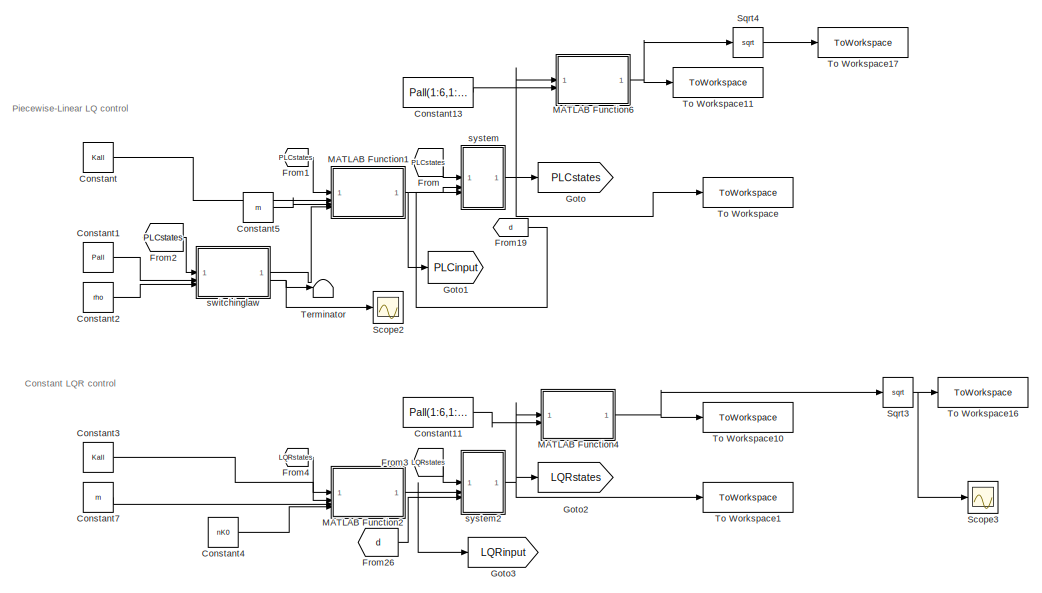
[diagram: root canvas - part 1/6, top center region]
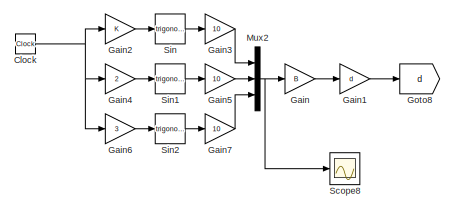
[diagram: root canvas - part 2/6, top center region]
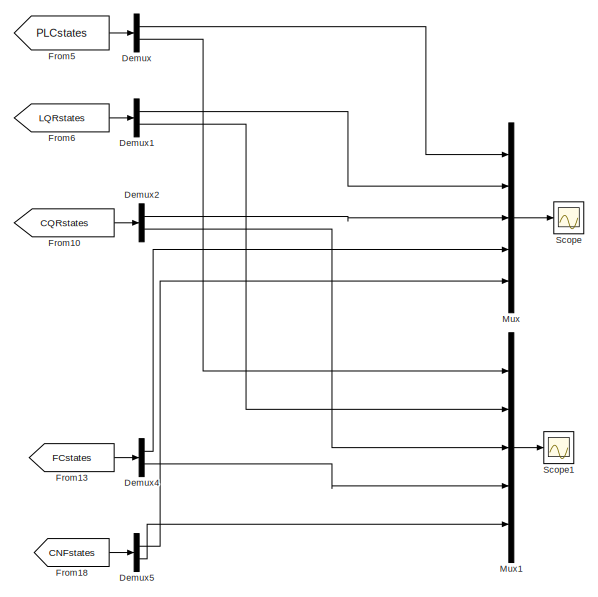
[diagram: root canvas - part 3/6, middle right region]
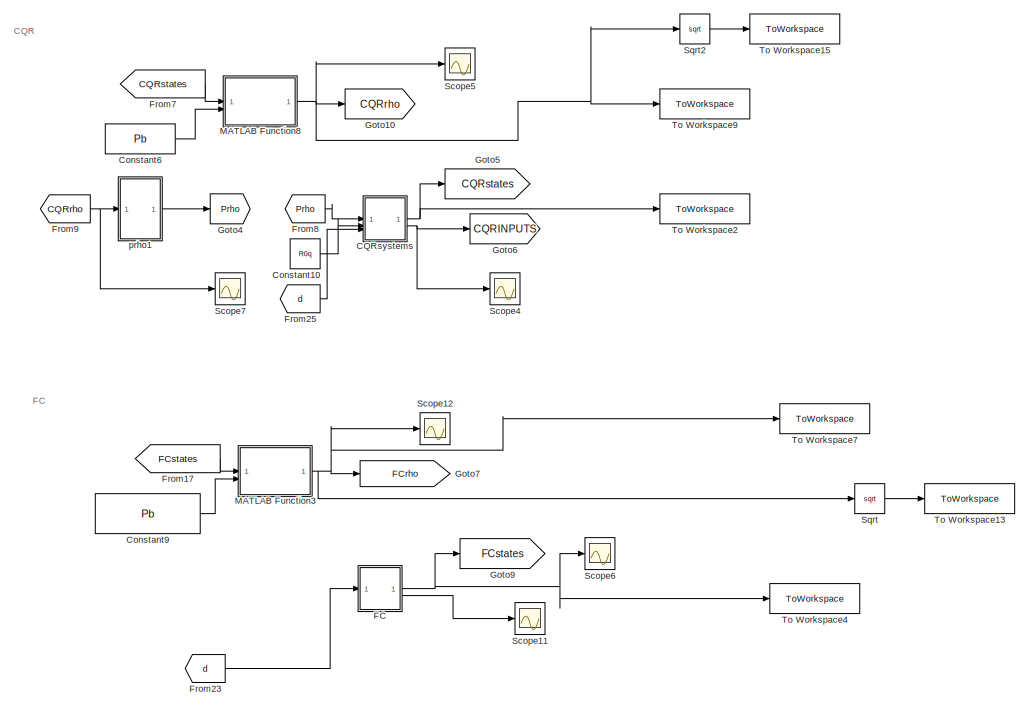
[diagram: root canvas - part 4/6, central region]
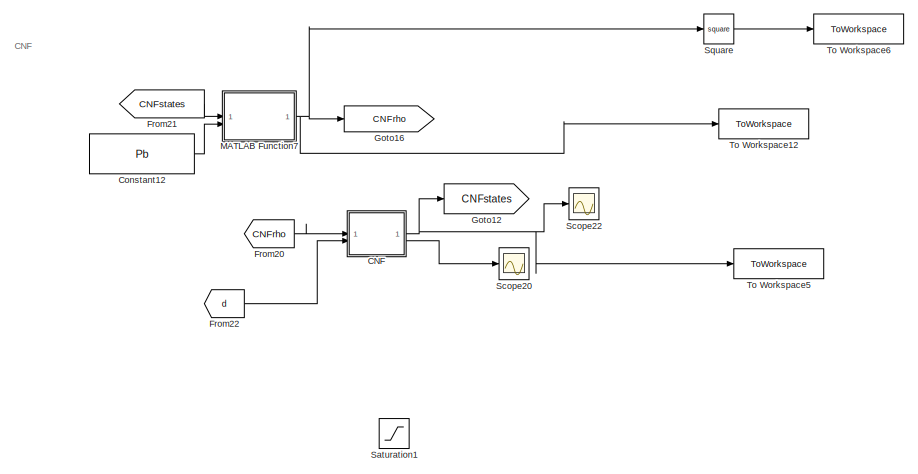
[diagram: root canvas - part 5/6, bottom center region]
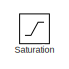
[diagram: root canvas - part 6/6, bottom left region]
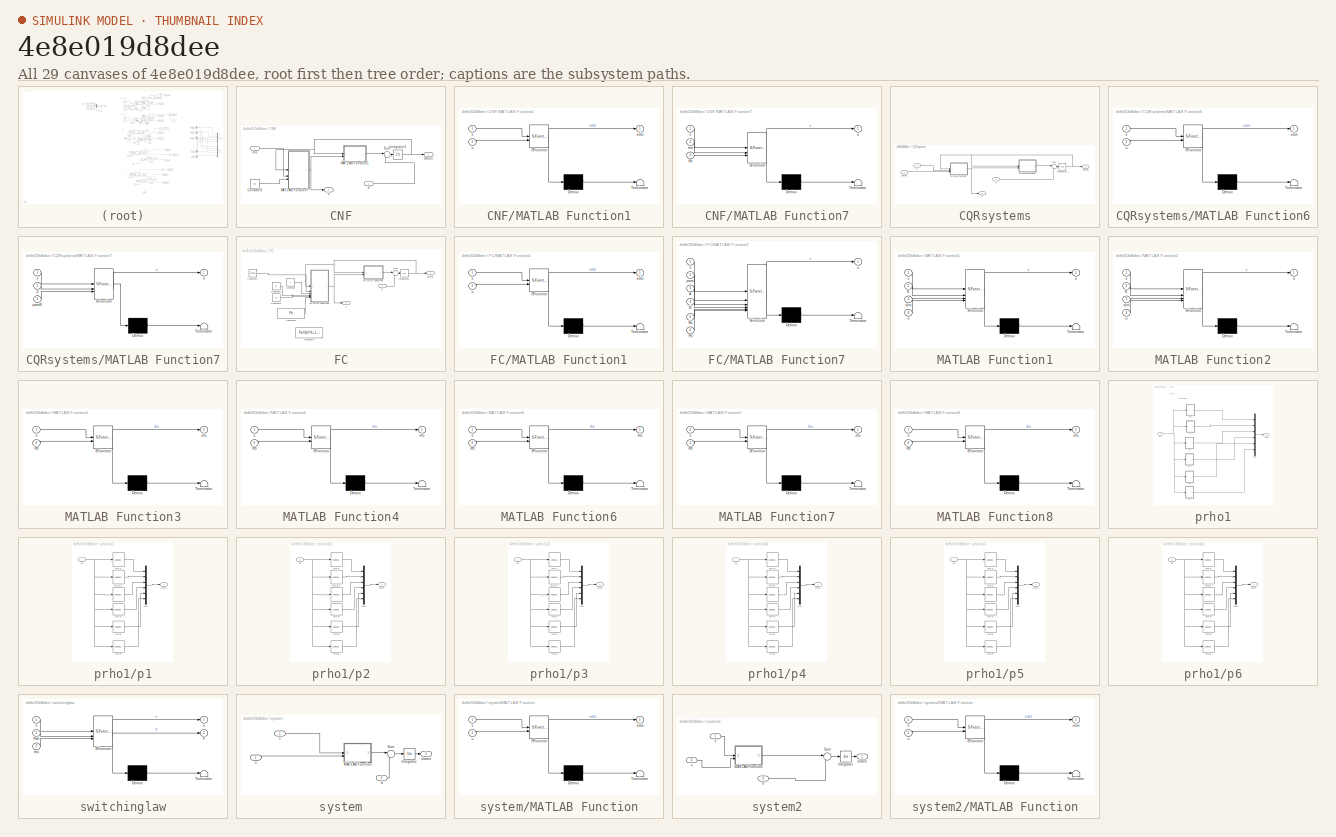
[diagram: thumbnail index - all 29 canvases of the model, root first then tree order]
MODEL slx_4e8e019d8dee
KIND model
CONFIG AbsTol = auto
CONFIG EnableMultiTasking = off
CONFIG FixedStep = 0.001
CONFIG MaxStep = auto
CONFIG MinStep = auto
CONFIG RelTol = 1e-3
CONFIG SampleTimeConstraint = Unconstrained
CONFIG SolverName = ode4
CONFIG StartTime = 0.0
CONFIG StopTime = 10
BLOCK [SubSystem] CNF
BLOCK [Constant] CNF/Constant3
  Value = Kb
BLOCK [Integrator] CNF/Integrator1
  InitialCondition = x0
BLOCK [SubSystem] CNF/MATLAB Function1
  ErrorFcn = Stateflow.Translate.translate
  LibrarySourceBlock = simulink/User-Defined\nFunctions/MATLAB Function
  PermitHierarchicalResolution = ExplicitOnly
  SFBlockType = MATLAB Function
  TreatAsAtomicUnit = on
BLOCK [Demux] CNF/MATLAB Function1/ Demux 
  Outputs = 1
BLOCK [S-Function] CNF/MATLAB Function1/ SFunction 
  EnableBusSupport = on
  FunctionName = sf_sfun
  PortCounts = [2 2]
  SFcnIsStateOwnerBlock = off
  SFunctionDeploymentMode = off
  Tag = Stateflow S-Function 26
BLOCK [Terminator] CNF/MATLAB Function1/ Terminator 
BLOCK [Inport] CNF/MATLAB Function1/u
  Port = 2
BLOCK [Inport] CNF/MATLAB Function1/x
BLOCK [Outport] CNF/MATLAB Function1/xdot
BLOCK [SubSystem] CNF/MATLAB Function7
  ErrorFcn = Stateflow.Translate.translate
  LibrarySourceBlock = simulink/User-Defined\nFunctions/MATLAB Function
  PermitHierarchicalResolution = ExplicitOnly
  SFBlockType = MATLAB Function
  TreatAsAtomicUnit = on
BLOCK [Demux] CNF/MATLAB Function7/ Demux 
  Outputs = 1
BLOCK [S-Function] CNF/MATLAB Function7/ SFunction 
  EnableBusSupport = on
  FunctionName = sf_sfun
  PortCounts = [3 2]
  SFcnIsStateOwnerBlock = off
  SFunctionDeploymentMode = off
  Tag = Stateflow S-Function 27
BLOCK [Terminator] CNF/MATLAB Function7/ Terminator 
BLOCK [Inport] CNF/MATLAB Function7/Kb
  Port = 3
BLOCK [Inport] CNF/MATLAB Function7/rho
  Port = 2
BLOCK [Outport] CNF/MATLAB Function7/u
BLOCK [Inport] CNF/MATLAB Function7/x
BLOCK [Sum] CNF/Sum
  Inputs = |++
BLOCK [Inport] CNF/d
  Port = 2
BLOCK [Inport] CNF/rho
BLOCK [Outport] CNF/states
BLOCK [Outport] CNF/u
  Port = 2
BLOCK [SubSystem] CQRsystems
BLOCK [Integrator] CQRsystems/Integrator1
  InitialCondition = x0
BLOCK [SubSystem] CQRsystems/MATLAB Function6
  ErrorFcn = Stateflow.Translate.translate
  LibrarySourceBlock = simulink/User-Defined\nFunctions/MATLAB Function
  PermitHierarchicalResolution = ExplicitOnly
  SFBlockType = MATLAB Function
  TreatAsAtomicUnit = on
BLOCK [Demux] CQRsystems/MATLAB Function6/ Demux 
  Outputs = 1
BLOCK [S-Function] CQRsystems/MATLAB Function6/ SFunction 
  EnableBusSupport = on
  FunctionName = sf_sfun
  PortCounts = [2 2]
  SFcnIsStateOwnerBlock = off
  SFunctionDeploymentMode = off
  Tag = Stateflow S-Function 5
BLOCK [Terminator] CQRsystems/MATLAB Function6/ Terminator 
BLOCK [Inport] CQRsystems/MATLAB Function6/u
  Port = 2
BLOCK [Inport] CQRsystems/MATLAB Function6/x
BLOCK [Outport] CQRsystems/MATLAB Function6/xdot
BLOCK [SubSystem] CQRsystems/MATLAB Function7
  ErrorFcn = Stateflow.Translate.translate
  LibrarySourceBlock = simulink/User-Defined\nFunctions/MATLAB Function
  PermitHierarchicalResolution = ExplicitOnly
  SFBlockType = MATLAB Function
  TreatAsAtomicUnit = on
BLOCK [Demux] CQRsystems/MATLAB Function7/ Demux 
  Outputs = 1
BLOCK [S-Function] CQRsystems/MATLAB Function7/ SFunction 
  EnableBusSupport = on
  FunctionName = sf_sfun
  PortCounts = [3 2]
  SFcnIsStateOwnerBlock = off
  SFunctionDeploymentMode = off
  Tag = Stateflow S-Function 9
BLOCK [Terminator] CQRsystems/MATLAB Function7/ Terminator 
BLOCK [Inport] CQRsystems/MATLAB Function7/p
  Port = 2
BLOCK [Inport] CQRsystems/MATLAB Function7/paraR
  Port = 3
BLOCK [Outport] CQRsystems/MATLAB Function7/u
BLOCK [Inport] CQRsystems/MATLAB Function7/x
BLOCK [Sum] CQRsystems/Sum
  Inputs = |++
BLOCK [Inport] CQRsystems/d
  Port = 3
BLOCK [Inport] CQRsystems/p
BLOCK [Inport] CQRsystems/paraR
  Port = 2
BLOCK [Outport] CQRsystems/states
BLOCK [Outport] CQRsystems/u
  Port = 2
BLOCK [Clock] Clock
BLOCK [Constant] Constant
  Value = Kall
BLOCK [Constant] Constant1
  Value = Pall
BLOCK [Constant] Constant10
  Value = R0q
BLOCK [Constant] Constant11
  Value = Pall(1:6,1:6)
BLOCK [Constant] Constant12
  Value = Pb
BLOCK [Constant] Constant13
  Value = Pall(1:6,1:6)
BLOCK [Constant] Constant2
  Value = rho
BLOCK [Constant] Constant3
  Value = Kall
BLOCK [Constant] Constant4
  Value = nK0
BLOCK [Constant] Constant5
  Value = m
BLOCK [Constant] Constant6
  Value = Pb
BLOCK [Constant] Constant7
  Value = m
BLOCK [Constant] Constant9
  Value = Pb
BLOCK [Demux] Demux
  Outputs = 2
BLOCK [Demux] Demux1
  Outputs = 2
BLOCK [Demux] Demux2
  Outputs = 2
BLOCK [Demux] Demux4
  Outputs = 2
BLOCK [Demux] Demux5
  Outputs = 2
BLOCK [SubSystem] FC
BLOCK [Constant] FC/Constant
  Value = A
BLOCK [Constant] FC/Constant1
  Value = B
BLOCK [Constant] FC/Constant2
  Value = Kb
BLOCK [Constant] FC/Constant3
  Value = Fcdirec
BLOCK [Constant] FC/Constant4
  Commented = on
  Value = Pall(60*6+1:61*6,:)
BLOCK [Constant] FC/Constant9
  Value = Pb
BLOCK [Integrator] FC/Integrator1
  InitialCondition = x0
BLOCK [SubSystem] FC/MATLAB Function1
  ErrorFcn = Stateflow.Translate.translate
  LibrarySourceBlock = simulink/User-Defined\nFunctions/MATLAB Function
  PermitHierarchicalResolution = ExplicitOnly
  SFBlockType = MATLAB Function
  TreatAsAtomicUnit = on
BLOCK [Demux] FC/MATLAB Function1/ Demux 
  Outputs = 1
BLOCK [S-Function] FC/MATLAB Function1/ SFunction 
  EnableBusSupport = on
  FunctionName = sf_sfun
  PortCounts = [2 2]
  SFcnIsStateOwnerBlock = off
  SFunctionDeploymentMode = off
  Tag = Stateflow S-Function 8
BLOCK [Terminator] FC/MATLAB Function1/ Terminator 
BLOCK [Inport] FC/MATLAB Function1/u
  Port = 2
BLOCK [Inport] FC/MATLAB Function1/x
BLOCK [Outport] FC/MATLAB Function1/xdot
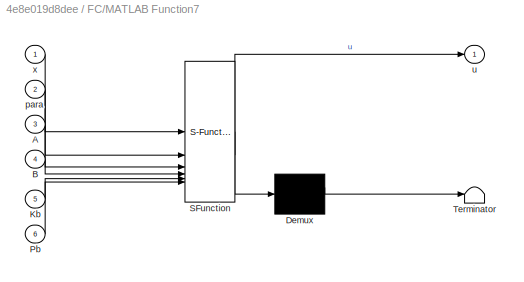
BLOCK [SubSystem] FC/MATLAB Function7
  ErrorFcn = Stateflow.Translate.translate
  LibrarySourceBlock = simulink/User-Defined\nFunctions/MATLAB Function
  PermitHierarchicalResolution = ExplicitOnly
  SFBlockType = MATLAB Function
  TreatAsAtomicUnit = on
BLOCK [Demux] FC/MATLAB Function7/ Demux 
  Outputs = 1
BLOCK [S-Function] FC/MATLAB Function7/ SFunction 
  EnableBusSupport = on
  FunctionName = sf_sfun
  PortCounts = [6 2]
  SFcnIsStateOwnerBlock = off
  SFunctionDeploymentMode = off
  Tag = Stateflow S-Function 10
BLOCK [Terminator] FC/MATLAB Function7/ Terminator 
BLOCK [Inport] FC/MATLAB Function7/A
  Port = 3
BLOCK [Inport] FC/MATLAB Function7/B
  Port = 4
BLOCK [Inport] FC/MATLAB Function7/Kb
  Port = 5
BLOCK [Inport] FC/MATLAB Function7/Pb
  Port = 6
BLOCK [Inport] FC/MATLAB Function7/para
  Port = 2
BLOCK [Outport] FC/MATLAB Function7/u
BLOCK [Inport] FC/MATLAB Function7/x
BLOCK [Sum] FC/Sum
  Inputs = |++
BLOCK [Inport] FC/d
BLOCK [Outport] FC/states
BLOCK [Outport] FC/u
  Port = 2
BLOCK [From] From
  GotoTag = PLCstates
BLOCK [From] From1
  GotoTag = PLCstates
BLOCK [From] From10
  GotoTag = CQRstates
BLOCK [From] From13
  GotoTag = FCstates
BLOCK [From] From17
  GotoTag = FCstates
BLOCK [From] From18
  GotoTag = CNFstates
BLOCK [From] From19
  GotoTag = d
BLOCK [From] From2
  GotoTag = PLCstates
BLOCK [From] From20
  GotoTag = CNFrho
BLOCK [From] From21
  GotoTag = CNFstates
BLOCK [From] From22
  GotoTag = d
BLOCK [From] From23
  GotoTag = d
BLOCK [From] From25
  GotoTag = d
BLOCK [From] From26
  GotoTag = d
BLOCK [From] From3
  GotoTag = LQRstates
BLOCK [From] From4
  GotoTag = LQRstates
BLOCK [From] From5
  GotoTag = PLCstates
BLOCK [From] From6
  GotoTag = LQRstates
BLOCK [From] From7
  GotoTag = CQRstates
BLOCK [From] From8
  GotoTag = Prho
BLOCK [From] From9
  GotoTag = CQRrho
BLOCK [Gain] Gain
  Gain = B
  Multiplication = Matrix(K*u)
BLOCK [Gain] Gain1
  Gain = d
BLOCK [Gain] Gain2
BLOCK [Gain] Gain3
  Gain = 10
BLOCK [Gain] Gain4
  Gain = 2
BLOCK [Gain] Gain5
  Gain = 10
BLOCK [Gain] Gain6
  Gain = 3
BLOCK [Gain] Gain7
  Gain = 10
BLOCK [Goto] Goto
  GotoTag = PLCstates
BLOCK [Goto] Goto1
  GotoTag = PLCinput
BLOCK [Goto] Goto10
  GotoTag = CQRrho
BLOCK [Goto] Goto12
  GotoTag = CNFstates
BLOCK [Goto] Goto16
  GotoTag = CNFrho
BLOCK [Goto] Goto2
  GotoTag = LQRstates
BLOCK [Goto] Goto3
  GotoTag = LQRinput
BLOCK [Goto] Goto4
  GotoTag = Prho
BLOCK [Goto] Goto5
  GotoTag = CQRstates
BLOCK [Goto] Goto6
  GotoTag = CQRINPUTS
BLOCK [Goto] Goto7
  GotoTag = FCrho
BLOCK [Goto] Goto8
  GotoTag = d
BLOCK [Goto] Goto9
  GotoTag = FCstates
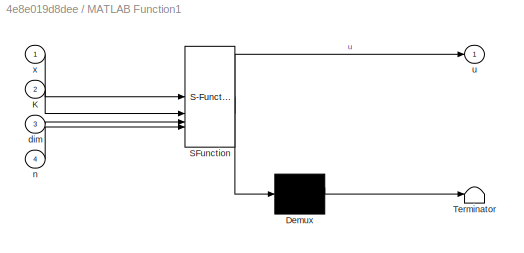
BLOCK [SubSystem] MATLAB Function1
  ErrorFcn = Stateflow.Translate.translate
  LibrarySourceBlock = simulink/User-Defined\nFunctions/MATLAB Function
  PermitHierarchicalResolution = ExplicitOnly
  SFBlockType = MATLAB Function
  TreatAsAtomicUnit = on
BLOCK [Demux] MATLAB Function1/ Demux 
  Outputs = 1
BLOCK [S-Function] MATLAB Function1/ SFunction 
  EnableBusSupport = on
  FunctionName = sf_sfun
  PortCounts = [4 2]
  SFcnIsStateOwnerBlock = off
  SFunctionDeploymentMode = off
  Tag = Stateflow S-Function 1
BLOCK [Terminator] MATLAB Function1/ Terminator 
BLOCK [Inport] MATLAB Function1/K
  Port = 2
BLOCK [Inport] MATLAB Function1/dim
  Port = 3
BLOCK [Inport] MATLAB Function1/n
  Port = 4
BLOCK [Outport] MATLAB Function1/u
BLOCK [Inport] MATLAB Function1/x
BLOCK [SubSystem] MATLAB Function2
  ErrorFcn = Stateflow.Translate.translate
  LibrarySourceBlock = simulink/User-Defined\nFunctions/MATLAB Function
  PermitHierarchicalResolution = ExplicitOnly
  SFBlockType = MATLAB Function
  TreatAsAtomicUnit = on
BLOCK [Demux] MATLAB Function2/ Demux 
  Outputs = 1
BLOCK [S-Function] MATLAB Function2/ SFunction 
  EnableBusSupport = on
  FunctionName = sf_sfun
  PortCounts = [4 2]
  SFcnIsStateOwnerBlock = off
  SFunctionDeploymentMode = off
  Tag = Stateflow S-Function 4
BLOCK [Terminator] MATLAB Function2/ Terminator 
BLOCK [Inport] MATLAB Function2/K
  Port = 2
BLOCK [Inport] MATLAB Function2/dim
  Port = 3
BLOCK [Inport] MATLAB Function2/n
  Port = 4
BLOCK [Outport] MATLAB Function2/u
BLOCK [Inport] MATLAB Function2/x
BLOCK [SubSystem] MATLAB Function3
  ErrorFcn = Stateflow.Translate.translate
  LibrarySourceBlock = simulink/User-Defined\nFunctions/MATLAB Function
  PermitHierarchicalResolution = ExplicitOnly
  SFBlockType = MATLAB Function
  TreatAsAtomicUnit = on
BLOCK [Demux] MATLAB Function3/ Demux 
  Outputs = 1
BLOCK [S-Function] MATLAB Function3/ SFunction 
  EnableBusSupport = on
  FunctionName = sf_sfun
  PortCounts = [2 2]
  SFcnIsStateOwnerBlock = off
  SFunctionDeploymentMode = off
  Tag = Stateflow S-Function 12
BLOCK [Terminator] MATLAB Function3/ Terminator 
BLOCK [Inport] MATLAB Function3/P0
  Port = 2
BLOCK [Outport] MATLAB Function3/rho
BLOCK [Inport] MATLAB Function3/x
BLOCK [SubSystem] MATLAB Function4
  ErrorFcn = Stateflow.Translate.translate
  LibrarySourceBlock = simulink/User-Defined\nFunctions/MATLAB Function
  PermitHierarchicalResolution = ExplicitOnly
  SFBlockType = MATLAB Function
  TreatAsAtomicUnit = on
BLOCK [Demux] MATLAB Function4/ Demux 
  Outputs = 1
BLOCK [S-Function] MATLAB Function4/ SFunction 
  EnableBusSupport = on
  FunctionName = sf_sfun
  PortCounts = [2 2]
  SFcnIsStateOwnerBlock = off
  SFunctionDeploymentMode = off
  Tag = Stateflow S-Function 18
BLOCK [Terminator] MATLAB Function4/ Terminator 
BLOCK [Inport] MATLAB Function4/P0
  Port = 2
BLOCK [Outport] MATLAB Function4/rho
BLOCK [Inport] MATLAB Function4/x
BLOCK [SubSystem] MATLAB Function6
  ErrorFcn = Stateflow.Translate.translate
  LibrarySourceBlock = simulink/User-Defined\nFunctions/MATLAB Function
  PermitHierarchicalResolution = ExplicitOnly
  SFBlockType = MATLAB Function
  TreatAsAtomicUnit = on
BLOCK [Demux] MATLAB Function6/ Demux 
  Outputs = 1
BLOCK [S-Function] MATLAB Function6/ SFunction 
  EnableBusSupport = on
  FunctionName = sf_sfun
  PortCounts = [2 2]
  SFcnIsStateOwnerBlock = off
  SFunctionDeploymentMode = off
  Tag = Stateflow S-Function 21
BLOCK [Terminator] MATLAB Function6/ Terminator 
BLOCK [Inport] MATLAB Function6/P0
  Port = 2
BLOCK [Outport] MATLAB Function6/rho
BLOCK [Inport] MATLAB Function6/x
BLOCK [SubSystem] MATLAB Function7
  ErrorFcn = Stateflow.Translate.translate
  LibrarySourceBlock = simulink/User-Defined\nFunctions/MATLAB Function
  PermitHierarchicalResolution = ExplicitOnly
  SFBlockType = MATLAB Function
  TreatAsAtomicUnit = on
BLOCK [Demux] MATLAB Function7/ Demux 
  Outputs = 1
BLOCK [S-Function] MATLAB Function7/ SFunction 
  EnableBusSupport = on
  FunctionName = sf_sfun
  PortCounts = [2 2]
  SFcnIsStateOwnerBlock = off
  SFunctionDeploymentMode = off
  Tag = Stateflow S-Function 28
BLOCK [Terminator] MATLAB Function7/ Terminator 
BLOCK [Inport] MATLAB Function7/P0
  Port = 2
BLOCK [Outport] MATLAB Function7/rho
BLOCK [Inport] MATLAB Function7/x
BLOCK [SubSystem] MATLAB Function8
  ErrorFcn = Stateflow.Translate.translate
  LibrarySourceBlock = simulink/User-Defined\nFunctions/MATLAB Function
  PermitHierarchicalResolution = ExplicitOnly
  SFBlockType = MATLAB Function
  TreatAsAtomicUnit = on
BLOCK [Demux] MATLAB Function8/ Demux 
  Outputs = 1
BLOCK [S-Function] MATLAB Function8/ SFunction 
  EnableBusSupport = on
  FunctionName = sf_sfun
  PortCounts = [2 2]
  SFcnIsStateOwnerBlock = off
  SFunctionDeploymentMode = off
  Tag = Stateflow S-Function 11
BLOCK [Terminator] MATLAB Function8/ Terminator 
BLOCK [Inport] MATLAB Function8/P0
  Port = 2
BLOCK [Outport] MATLAB Function8/rho
BLOCK [Inport] MATLAB Function8/x
BLOCK [Mux] Mux
  DisplayOption = bar
  Inputs = 5
BLOCK [Mux] Mux1
  DisplayOption = bar
  Inputs = 5
BLOCK [Mux] Mux2
  DisplayOption = bar
  Inputs = 3
BLOCK [Saturate] Saturation
  LowerLimit = -umax'
  UpperLimit = umax'
BLOCK [Saturate] Saturation1
  LowerLimit = -umax'
  UpperLimit = umax'
BLOCK [Scope] Scope
  Floating = off
  NumInputPorts = 1
  ScopeSpecificationString = Simulink.scopes.TimeScopeBlockCfg('CurrentConfiguration', extmgr.ConfigurationSet(extmgr.Configuration('Core','General UI',true),extmgr.Configuration('Core','Source UI',true),extmgr.Configuration('Sources','WiredSimulink',true,'DataLoggingVariableName','ScopeData7'),extmgr.Configuration('Visuals','Time Domain',true,'SerializedDisplays',{struct('MinYLimReal','-0.13022','MaxYLimReal','8.74844','YLab...<+2055ch>
BLOCK [Scope] Scope1
  Floating = off
  NumInputPorts = 1
  ScopeSpecificationString = Simulink.scopes.TimeScopeBlockCfg('CurrentConfiguration', extmgr.ConfigurationSet(extmgr.Configuration('Core','General UI',true),extmgr.Configuration('Core','Source UI',true),extmgr.Configuration('Sources','WiredSimulink',true,'DataLoggingVariableName','ScopeData10'),extmgr.Configuration('Visuals','Time Domain',true,'SerializedDisplays',{struct('MinYLimReal','-15.77132','MaxYLimReal','12.07055','Y...<+2080ch>
BLOCK [Scope] Scope11
  Floating = off
  NumInputPorts = 1
  ScopeSpecificationString = Simulink.scopes.TimeScopeBlockCfg('CurrentConfiguration', extmgr.ConfigurationSet(extmgr.Configuration('Core','General UI',true),extmgr.Configuration('Core','Source UI',true),extmgr.Configuration('Sources','WiredSimulink',true,'DataLoggingVariableName','ScopeData3'),extmgr.Configuration('Visuals','Time Domain',true,'SerializedDisplays',{struct('MinYLimReal','-145.54818','MaxYLimReal','111.24452','...<+1582ch>
BLOCK [Scope] Scope12
  Floating = off
  NumInputPorts = 1
  ScopeSpecificationString = Simulink.scopes.TimeScopeBlockCfg('CurrentConfiguration', extmgr.ConfigurationSet(extmgr.Configuration('Core','General UI',true),extmgr.Configuration('Core','Source UI',true),extmgr.Configuration('Sources','WiredSimulink',true,'DataLoggingVariableName','ScopeData8'),extmgr.Configuration('Visuals','Time Domain',true,'SerializedDisplays',{struct('MinYLimReal','-1.46938','MaxYLimReal','1.74044','YLab...<+1450ch>
BLOCK [Scope] Scope2
  Floating = off
  NumInputPorts = 1
  ScopeSpecificationString = Simulink.scopes.TimeScopeBlockCfg('CurrentConfiguration', extmgr.ConfigurationSet(extmgr.Configuration('Core','General UI',true),extmgr.Configuration('Core','Source UI',true),extmgr.Configuration('Sources','WiredSimulink',true,'DataLoggingVariableName','ScopeData2'),extmgr.Configuration('Visuals','Time Domain',true,'SerializedDisplays',{struct('MinYLimReal','-1.25','MaxYLimReal','1.25','YLabelReal...<+3377ch>
BLOCK [Scope] Scope20
  Floating = off
  NumInputPorts = 1
  ScopeSpecificationString = Simulink.scopes.TimeScopeBlockCfg('CurrentConfiguration', extmgr.ConfigurationSet(extmgr.Configuration('Core','General UI',true),extmgr.Configuration('Core','Source UI',true),extmgr.Configuration('Sources','WiredSimulink',true,'DataLoggingVariableName','ScopeData15'),extmgr.Configuration('Visuals','Time Domain',true,'SerializedDisplays',{struct('MinYLimReal','-66.61082','MaxYLimReal','66.36689','Y...<+1568ch>
BLOCK [Scope] Scope22
  Floating = off
  NumInputPorts = 1
  ScopeSpecificationString = Simulink.scopes.TimeScopeBlockCfg('CurrentConfiguration', extmgr.ConfigurationSet(extmgr.Configuration('Core','General UI',true),extmgr.Configuration('Core','Source UI',true),extmgr.Configuration('Sources','WiredSimulink',true,'DataLoggingVariableName','ScopeData17'),extmgr.Configuration('Visuals','Time Domain',true,'SerializedDisplays',{struct('MinYLimReal','-15.76603','MaxYLimReal','12.02725','Y...<+1638ch>
BLOCK [Scope] Scope3
  Floating = off
  NumInputPorts = 1
  ScopeSpecificationString = Simulink.scopes.TimeScopeBlockCfg('CurrentConfiguration', extmgr.ConfigurationSet(extmgr.Configuration('Core','General UI',true),extmgr.Configuration('Core','Source UI',true),extmgr.Configuration('Sources','WiredSimulink',true,'DataLoggingVariableName','ScopeData1'),extmgr.Configuration('Visuals','Time Domain',true,'SerializedDisplays',{struct('MinYLimReal','-3.24069','MaxYLimReal','36.25759','YLa...<+1420ch>
BLOCK [Scope] Scope4
  Floating = off
  NumInputPorts = 1
  ScopeSpecificationString = Simulink.scopes.TimeScopeBlockCfg('CurrentConfiguration', extmgr.ConfigurationSet(extmgr.Configuration('Core','General UI',true),extmgr.Configuration('Core','Source UI',true),extmgr.Configuration('Sources','WiredSimulink',true,'DataLoggingVariableName','ScopeData1'),extmgr.Configuration('Visuals','Time Domain',true,'SerializedDisplays',{struct('MinYLimReal','-114.0853','MaxYLimReal','109.28917','Y...<+1485ch>
BLOCK [Scope] Scope5
  Floating = off
  NumInputPorts = 1
  ScopeSpecificationString = Simulink.scopes.TimeScopeBlockCfg('CurrentConfiguration', extmgr.ConfigurationSet(extmgr.Configuration('Core','General UI',true),extmgr.Configuration('Core','Source UI',true),extmgr.Configuration('Sources','WiredSimulink',true,'DataLoggingVariableName','ScopeData2'),extmgr.Configuration('Visuals','Time Domain',true,'SerializedDisplays',{struct('MinYLimReal','-130.45755','MaxYLimReal','1174.11798',...<+1461ch>
BLOCK [Scope] Scope6
  Floating = off
  NumInputPorts = 1
  ScopeSpecificationString = Simulink.scopes.TimeScopeBlockCfg('CurrentConfiguration', extmgr.ConfigurationSet(extmgr.Configuration('Core','General UI',true),extmgr.Configuration('Core','Source UI',true),extmgr.Configuration('Sources','WiredSimulink',true,'DataLoggingVariableName','ScopeData9'),extmgr.Configuration('Visuals','Time Domain',true,'SerializedDisplays',{struct('MinYLimReal','-11.58255','MaxYLimReal','7.18096','YLa...<+1629ch>
BLOCK [Scope] Scope7
  Floating = off
  NumInputPorts = 1
  ScopeSpecificationString = Simulink.scopes.TimeScopeBlockCfg('CurrentConfiguration', extmgr.ConfigurationSet(extmgr.Configuration('Core','General UI',true),extmgr.Configuration('Core','Source UI',true),extmgr.Configuration('Sources','WiredSimulink',true,'DataLoggingVariableName','ScopeData1'),extmgr.Configuration('Visuals','Time Domain',true,'SerializedDisplays',{struct('MinYLimReal','-4.00898','MaxYLimReal','36.34295','YLa...<+1397ch>
BLOCK [Scope] Scope8
  Floating = off
  NumInputPorts = 1
  ScopeSpecificationString = Simulink.scopes.TimeScopeBlockCfg('CurrentConfiguration', extmgr.ConfigurationSet(extmgr.Configuration('Core','General UI',true),extmgr.Configuration('Core','Source UI',true),extmgr.Configuration('Sources','WiredSimulink',true,'DataLoggingVariableName','ScopeData2'),extmgr.Configuration('Visuals','Time Domain',true,'SerializedDisplays',{struct('MinYLimReal','-6.25','MaxYLimReal','6.25','YLabelReal...<+1430ch>
BLOCK [Trigonometry] Sin
BLOCK [Trigonometry] Sin1
BLOCK [Trigonometry] Sin2
BLOCK [Sqrt] Sqrt
BLOCK [Sqrt] Sqrt2
BLOCK [Sqrt] Sqrt3
BLOCK [Sqrt] Sqrt4
BLOCK [Math] Square
  Operator = square
BLOCK [Terminator] Terminator
BLOCK [ToWorkspace] To Workspace
  FixptAsFi = on
  MaxDataPoints = inf
  SampleTime = -1
  SaveFormat = Timeseries
  VariableName = PLCstates
BLOCK [ToWorkspace] To Workspace1
  FixptAsFi = on
  MaxDataPoints = inf
  SampleTime = -1
  SaveFormat = Timeseries
  VariableName = LQRstates
BLOCK [ToWorkspace] To Workspace10
  FixptAsFi = on
  MaxDataPoints = inf
  SampleTime = -1
  SaveFormat = Timeseries
  VariableName = LQRrho
BLOCK [ToWorkspace] To Workspace11
  FixptAsFi = on
  MaxDataPoints = inf
  SampleTime = -1
  SaveFormat = Timeseries
  VariableName = PLCrho
BLOCK [ToWorkspace] To Workspace12
  FixptAsFi = on
  MaxDataPoints = inf
  SampleTime = -1
  SaveFormat = Timeseries
  VariableName = CNFrho1
BLOCK [ToWorkspace] To Workspace13
  FixptAsFi = on
  MaxDataPoints = inf
  SampleTime = -1
  SaveFormat = Timeseries
  VariableName = FCrho1
BLOCK [ToWorkspace] To Workspace15
  FixptAsFi = on
  MaxDataPoints = inf
  SampleTime = -1
  SaveFormat = Timeseries
  VariableName = CQRrho1
BLOCK [ToWorkspace] To Workspace16
  FixptAsFi = on
  MaxDataPoints = inf
  SampleTime = -1
  SaveFormat = Timeseries
  VariableName = LQRrho1
BLOCK [ToWorkspace] To Workspace17
  FixptAsFi = on
  MaxDataPoints = inf
  SampleTime = -1
  SaveFormat = Timeseries
  VariableName = PLCrho1
BLOCK [ToWorkspace] To Workspace2
  FixptAsFi = on
  MaxDataPoints = inf
  SampleTime = -1
  SaveFormat = Timeseries
  VariableName = CQRstates
BLOCK [ToWorkspace] To Workspace4
  FixptAsFi = on
  MaxDataPoints = inf
  SampleTime = -1
  SaveFormat = Timeseries
  VariableName = FCstates
BLOCK [ToWorkspace] To Workspace5
  FixptAsFi = on
  MaxDataPoints = inf
  SampleTime = -1
  SaveFormat = Timeseries
  VariableName = CNFstates
BLOCK [ToWorkspace] To Workspace6
  FixptAsFi = on
  MaxDataPoints = inf
  SampleTime = -1
  SaveFormat = Timeseries
  VariableName = CNFrho
BLOCK [ToWorkspace] To Workspace7
  FixptAsFi = on
  MaxDataPoints = inf
  SampleTime = -1
  SaveFormat = Timeseries
  VariableName = FCrho
BLOCK [ToWorkspace] To Workspace9
  FixptAsFi = on
  MaxDataPoints = inf
  SampleTime = -1
  SaveFormat = Timeseries
  VariableName = CQRrho
BLOCK [SubSystem] prho1
BLOCK [Inport] prho1/In1
BLOCK [Mux] prho1/Mux
  DisplayOption = bar
  Inputs = 6
BLOCK [Outport] prho1/Out1
BLOCK [SubSystem] prho1/p1
BLOCK [Inport] prho1/p1/In1
BLOCK [Mux] prho1/p1/Mux
  DisplayOption = bar
  Inputs = 6
BLOCK [Outport] prho1/p1/Out1
BLOCK [Lookup_n-D] prho1/p1/p(1,1)
  BreakpointsForDimension1 = rhospan
  InputPortMap = u0
  InternalRulePriority = Speed
  InterpMethod = Linear Lagrange
  NumberOfTableDimensions = 1
  RndMeth = Simplest
  Table = Pcq(:,1)
BLOCK [Lookup_n-D] prho1/p1/p(1,1)1
  BreakpointsForDimension1 = rhospan
  InputPortMap = u0
  InternalRulePriority = Speed
  InterpMethod = Linear Lagrange
  NumberOfTableDimensions = 1
  RndMeth = Simplest
  Table = Pcq(:,2)
BLOCK [Lookup_n-D] prho1/p1/p(1,1)2
  BreakpointsForDimension1 = rhospan
  InputPortMap = u0
  InternalRulePriority = Speed
  InterpMethod = Linear Lagrange
  NumberOfTableDimensions = 1
  RndMeth = Simplest
  Table = Pcq(:,3)
BLOCK [Lookup_n-D] prho1/p1/p(1,4)
  BreakpointsForDimension1 = rhospan
  InputPortMap = u0
  InternalRulePriority = Speed
  InterpMethod = Linear Lagrange
  NumberOfTableDimensions = 1
  RndMeth = Simplest
  Table = Pcq(:,4)
BLOCK [Lookup_n-D] prho1/p1/p(1,5)
  BreakpointsForDimension1 = rhospan
  InputPortMap = u0
  InternalRulePriority = Speed
  InterpMethod = Linear Lagrange
  NumberOfTableDimensions = 1
  RndMeth = Simplest
  Table = Pcq(:,5)
BLOCK [Lookup_n-D] prho1/p1/p(1,6)
  BreakpointsForDimension1 = rhospan
  InputPortMap = u0
  InternalRulePriority = Speed
  InterpMethod = Linear Lagrange
  NumberOfTableDimensions = 1
  RndMeth = Simplest
  Table = Pcq(:,6)
BLOCK [SubSystem] prho1/p2
BLOCK [Inport] prho1/p2/In1
BLOCK [Mux] prho1/p2/Mux
  DisplayOption = bar
  Inputs = 6
BLOCK [Outport] prho1/p2/Out1
BLOCK [Lookup_n-D] prho1/p2/p(2,1)
  BreakpointsForDimension1 = rhospan
  InputPortMap = u0
  InternalRulePriority = Speed
  InterpMethod = Linear Lagrange
  NumberOfTableDimensions = 1
  RndMeth = Simplest
  Table = Pcq(:,7)
BLOCK [Lookup_n-D] prho1/p2/p(2,2)1
  BreakpointsForDimension1 = rhospan
  InputPortMap = u0
  InternalRulePriority = Speed
  InterpMethod = Linear Lagrange
  NumberOfTableDimensions = 1
  RndMeth = Simplest
  Table = Pcq(:,8)
BLOCK [Lookup_n-D] prho1/p2/p(2,3)2
  BreakpointsForDimension1 = rhospan
  InputPortMap = u0
  InternalRulePriority = Speed
  InterpMethod = Linear Lagrange
  NumberOfTableDimensions = 1
  RndMeth = Simplest
  Table = Pcq(:,9)
BLOCK [Lookup_n-D] prho1/p2/p(2,4)
  BreakpointsForDimension1 = rhospan
  InputPortMap = u0
  InternalRulePriority = Speed
  InterpMethod = Linear Lagrange
  NumberOfTableDimensions = 1
  RndMeth = Simplest
  Table = Pcq(:,10)
BLOCK [Lookup_n-D] prho1/p2/p(2,5)
  BreakpointsForDimension1 = rhospan
  InputPortMap = u0
  InternalRulePriority = Speed
  InterpMethod = Linear Lagrange
  NumberOfTableDimensions = 1
  RndMeth = Simplest
  Table = Pcq(:,11)
BLOCK [Lookup_n-D] prho1/p2/p(2,6)
  BreakpointsForDimension1 = rhospan
  InputPortMap = u0
  InternalRulePriority = Speed
  InterpMethod = Linear Lagrange
  NumberOfTableDimensions = 1
  RndMeth = Simplest
  Table = Pcq(:,12)
BLOCK [SubSystem] prho1/p3
BLOCK [Inport] prho1/p3/In1
BLOCK [Mux] prho1/p3/Mux
  DisplayOption = bar
  Inputs = 6
BLOCK [Outport] prho1/p3/Out1
BLOCK [Lookup_n-D] prho1/p3/p(3,1)
  BreakpointsForDimension1 = rhospan
  InputPortMap = u0
  InternalRulePriority = Speed
  InterpMethod = Linear Lagrange
  NumberOfTableDimensions = 1
  RndMeth = Simplest
  Table = Pcq(:,13)
BLOCK [Lookup_n-D] prho1/p3/p(3,2)1
  BreakpointsForDimension1 = rhospan
  InputPortMap = u0
  InternalRulePriority = Speed
  InterpMethod = Linear Lagrange
  NumberOfTableDimensions = 1
  RndMeth = Simplest
  Table = Pcq(:,14)
BLOCK [Lookup_n-D] prho1/p3/p(3,3)2
  BreakpointsForDimension1 = rhospan
  InputPortMap = u0
  InternalRulePriority = Speed
  InterpMethod = Linear Lagrange
  NumberOfTableDimensions = 1
  RndMeth = Simplest
  Table = Pcq(:,15)
BLOCK [Lookup_n-D] prho1/p3/p(3,4)
  BreakpointsForDimension1 = rhospan
  InputPortMap = u0
  InternalRulePriority = Speed
  InterpMethod = Linear Lagrange
  NumberOfTableDimensions = 1
  RndMeth = Simplest
  Table = Pcq(:,16)
BLOCK [Lookup_n-D] prho1/p3/p(3,5)
  BreakpointsForDimension1 = rhospan
  InputPortMap = u0
  InternalRulePriority = Speed
  InterpMethod = Linear Lagrange
  NumberOfTableDimensions = 1
  RndMeth = Simplest
  Table = Pcq(:,17)
BLOCK [Lookup_n-D] prho1/p3/p(3,6)
  BreakpointsForDimension1 = rhospan
  InputPortMap = u0
  InternalRulePriority = Speed
  InterpMethod = Linear Lagrange
  NumberOfTableDimensions = 1
  RndMeth = Simplest
  Table = Pcq(:,18)
BLOCK [SubSystem] prho1/p4
BLOCK [Inport] prho1/p4/In1
BLOCK [Mux] prho1/p4/Mux
  DisplayOption = bar
  Inputs = 6
BLOCK [Outport] prho1/p4/Out1
BLOCK [Lookup_n-D] prho1/p4/p(4,1)
  BreakpointsForDimension1 = rhospan
  InputPortMap = u0
  InternalRulePriority = Speed
  InterpMethod = Linear Lagrange
  NumberOfTableDimensions = 1
  RndMeth = Simplest
  Table = Pcq(:,19)
BLOCK [Lookup_n-D] prho1/p4/p(4,2)
  BreakpointsForDimension1 = rhospan
  InputPortMap = u0
  InternalRulePriority = Speed
  InterpMethod = Linear Lagrange
  NumberOfTableDimensions = 1
  RndMeth = Simplest
  Table = Pcq(:,20)
BLOCK [Lookup_n-D] prho1/p4/p(4,3)
  BreakpointsForDimension1 = rhospan
  InputPortMap = u0
  InternalRulePriority = Speed
  InterpMethod = Linear Lagrange
  NumberOfTableDimensions = 1
  RndMeth = Simplest
  Table = Pcq(:,21)
BLOCK [Lookup_n-D] prho1/p4/p(4,4)
  BreakpointsForDimension1 = rhospan
  InputPortMap = u0
  InternalRulePriority = Speed
  InterpMethod = Linear Lagrange
  NumberOfTableDimensions = 1
  RndMeth = Simplest
  Table = Pcq(:,22)
BLOCK [Lookup_n-D] prho1/p4/p(4,5)
  BreakpointsForDimension1 = rhospan
  InputPortMap = u0
  InternalRulePriority = Speed
  InterpMethod = Linear Lagrange
  NumberOfTableDimensions = 1
  RndMeth = Simplest
  Table = Pcq(:,23)
BLOCK [Lookup_n-D] prho1/p4/p(4,6)
  BreakpointsForDimension1 = rhospan
  InputPortMap = u0
  InternalRulePriority = Speed
  InterpMethod = Linear Lagrange
  NumberOfTableDimensions = 1
  RndMeth = Simplest
  Table = Pcq(:,24)
BLOCK [SubSystem] prho1/p5
BLOCK [Inport] prho1/p5/In1
BLOCK [Mux] prho1/p5/Mux
  DisplayOption = bar
  Inputs = 6
BLOCK [Outport] prho1/p5/Out1
BLOCK [Lookup_n-D] prho1/p5/p(5,1)
  BreakpointsForDimension1 = rhospan
  InputPortMap = u0
  InternalRulePriority = Speed
  InterpMethod = Linear Lagrange
  NumberOfTableDimensions = 1
  RndMeth = Simplest
  Table = Pcq(:,25)
BLOCK [Lookup_n-D] prho1/p5/p(5,2)
  BreakpointsForDimension1 = rhospan
  InputPortMap = u0
  InternalRulePriority = Speed
  InterpMethod = Linear Lagrange
  NumberOfTableDimensions = 1
  RndMeth = Simplest
  Table = Pcq(:,26)
BLOCK [Lookup_n-D] prho1/p5/p(5,3)
  BreakpointsForDimension1 = rhospan
  InputPortMap = u0
  InternalRulePriority = Speed
  InterpMethod = Linear Lagrange
  NumberOfTableDimensions = 1
  RndMeth = Simplest
  Table = Pcq(:,27)
BLOCK [Lookup_n-D] prho1/p5/p(5,4)
  BreakpointsForDimension1 = rhospan
  InputPortMap = u0
  InternalRulePriority = Speed
  InterpMethod = Linear Lagrange
  NumberOfTableDimensions = 1
  RndMeth = Simplest
  Table = Pcq(:,28)
BLOCK [Lookup_n-D] prho1/p5/p(5,5)
  BreakpointsForDimension1 = rhospan
  InputPortMap = u0
  InternalRulePriority = Speed
  InterpMethod = Linear Lagrange
  NumberOfTableDimensions = 1
  RndMeth = Simplest
  Table = Pcq(:,29)
BLOCK [Lookup_n-D] prho1/p5/p(5,6)
  BreakpointsForDimension1 = rhospan
  InputPortMap = u0
  InternalRulePriority = Speed
  InterpMethod = Linear Lagrange
  NumberOfTableDimensions = 1
  RndMeth = Simplest
  Table = Pcq(:,30)
BLOCK [SubSystem] prho1/p6
BLOCK [Inport] prho1/p6/In1
BLOCK [Mux] prho1/p6/Mux
  DisplayOption = bar
  Inputs = 6
BLOCK [Outport] prho1/p6/Out1
BLOCK [Lookup_n-D] prho1/p6/p(6,1)
  BreakpointsForDimension1 = rhospan
  InputPortMap = u0
  InternalRulePriority = Speed
  InterpMethod = Linear Lagrange
  NumberOfTableDimensions = 1
  RndMeth = Simplest
  Table = Pcq(:,31)
BLOCK [Lookup_n-D] prho1/p6/p(6,2)
  BreakpointsForDimension1 = rhospan
  InputPortMap = u0
  InternalRulePriority = Speed
  InterpMethod = Linear Lagrange
  NumberOfTableDimensions = 1
  RndMeth = Simplest
  Table = Pcq(:,32)
BLOCK [Lookup_n-D] prho1/p6/p(6,3)
  BreakpointsForDimension1 = rhospan
  InputPortMap = u0
  InternalRulePriority = Speed
  InterpMethod = Linear Lagrange
  NumberOfTableDimensions = 1
  RndMeth = Simplest
  Table = Pcq(:,33)
BLOCK [Lookup_n-D] prho1/p6/p(6,4)
  BreakpointsForDimension1 = rhospan
  InputPortMap = u0
  InternalRulePriority = Speed
  InterpMethod = Linear Lagrange
  NumberOfTableDimensions = 1
  RndMeth = Simplest
  Table = Pcq(:,34)
BLOCK [Lookup_n-D] prho1/p6/p(6,5)
  BreakpointsForDimension1 = rhospan
  InputPortMap = u0
  InternalRulePriority = Speed
  InterpMethod = Linear Lagrange
  NumberOfTableDimensions = 1
  RndMeth = Simplest
  Table = Pcq(:,35)
BLOCK [Lookup_n-D] prho1/p6/p(6,6)
  BreakpointsForDimension1 = rhospan
  InputPortMap = u0
  InternalRulePriority = Speed
  InterpMethod = Linear Lagrange
  NumberOfTableDimensions = 1
  RndMeth = Simplest
  Table = Pcq(:,36)
BLOCK [SubSystem] switchinglaw
  ErrorFcn = Stateflow.Translate.translate
  LibrarySourceBlock = simulink/User-Defined\nFunctions/MATLAB Function
  PermitHierarchicalResolution = ExplicitOnly
  SFBlockType = MATLAB Function
  TreatAsAtomicUnit = on
BLOCK [Demux] switchinglaw/ Demux 
  Outputs = 1
BLOCK [S-Function] switchinglaw/ SFunction 
  EnableBusSupport = on
  FunctionName = sf_sfun
  PortCounts = [3 3]
  SFcnIsStateOwnerBlock = off
  SFunctionDeploymentMode = off
  Tag = Stateflow S-Function 3
BLOCK [Terminator] switchinglaw/ Terminator 
BLOCK [Outport] switchinglaw/F
  Port = 2
BLOCK [Inport] switchinglaw/Pall
  Port = 2
BLOCK [Outport] switchinglaw/n
BLOCK [Inport] switchinglaw/rho
  Port = 3
BLOCK [Inport] switchinglaw/x
BLOCK [SubSystem] system
BLOCK [Integrator] system/Integrator
  InitialCondition = x0
BLOCK [SubSystem] system/MATLAB Function
  ErrorFcn = Stateflow.Translate.translate
  LibrarySourceBlock = simulink/User-Defined\nFunctions/MATLAB Function
  PermitHierarchicalResolution = ExplicitOnly
  SFBlockType = MATLAB Function
  TreatAsAtomicUnit = on
BLOCK [Demux] system/MATLAB Function/ Demux 
  Outputs = 1
BLOCK [S-Function] system/MATLAB Function/ SFunction 
  EnableBusSupport = on
  FunctionName = sf_sfun
  PortCounts = [2 2]
  SFcnIsStateOwnerBlock = off
  SFunctionDeploymentMode = off
  Tag = Stateflow S-Function 2
BLOCK [Terminator] system/MATLAB Function/ Terminator 
BLOCK [Inport] system/MATLAB Function/u
  Port = 2
BLOCK [Inport] system/MATLAB Function/x
BLOCK [Outport] system/MATLAB Function/xdot
BLOCK [Sum] system/Sum
  Inputs = |++
BLOCK [Inport] system/d
  Port = 3
BLOCK [Outport] system/states
BLOCK [Inport] system/u
  Port = 2
BLOCK [Inport] system/x
BLOCK [SubSystem] system2
BLOCK [Integrator] system2/Integrator
  InitialCondition = x0
BLOCK [SubSystem] system2/MATLAB Function
  ErrorFcn = Stateflow.Translate.translate
  LibrarySourceBlock = simulink/User-Defined\nFunctions/MATLAB Function
  PermitHierarchicalResolution = ExplicitOnly
  SFBlockType = MATLAB Function
  TreatAsAtomicUnit = on
BLOCK [Demux] system2/MATLAB Function/ Demux 
  Outputs = 1
BLOCK [S-Function] system2/MATLAB Function/ SFunction 
  EnableBusSupport = on
  FunctionName = sf_sfun
  PortCounts = [2 2]
  SFcnIsStateOwnerBlock = off
  SFunctionDeploymentMode = off
  Tag = Stateflow S-Function 22
BLOCK [Terminator] system2/MATLAB Function/ Terminator 
BLOCK [Inport] system2/MATLAB Function/u
  Port = 2
BLOCK [Inport] system2/MATLAB Function/x
BLOCK [Outport] system2/MATLAB Function/xdot
BLOCK [Sum] system2/Sum
  Inputs = |++
BLOCK [Inport] system2/d
  Port = 3
BLOCK [Outport] system2/states
BLOCK [Inport] system2/u
  Port = 2
BLOCK [Inport] system2/x
ANNOTATION (root): CNF
ANNOTATION (root): CQR
ANNOTATION (root): Constant LQR control
ANNOTATION (root): FC
ANNOTATION (root): Piecewise-Linear LQ control
ANNOTATION prho1: Prho
ANNOTATION prho1: Subsystem
LINE CNF/Constant3:1 -> CNF/MATLAB Function7:3
NET CNF/Integrator1:1 -> CNF/MATLAB Function1:1, CNF/MATLAB Function7:1, CNF/states:1
LINE CNF/MATLAB Function1:1 -> CNF/Sum:1
NET CNF/MATLAB Function7:1 -> CNF/MATLAB Function1:2, CNF/u:1
LINE CNF/Sum:1 -> CNF/Integrator1:1
LINE CNF/d:1 -> CNF/Sum:2
LINE CNF/rho:1 -> CNF/MATLAB Function7:2
NET CNF:1 -> Goto12:1, Scope22:1, To Workspace5:1
LINE CNF:2 -> Scope20:1
NET CQRsystems/Integrator1:1 -> CQRsystems/MATLAB Function6:1, CQRsystems/MATLAB Function7:1, CQRsystems/states:1
LINE CQRsystems/MATLAB Function6:1 -> CQRsystems/Sum:1
NET CQRsystems/MATLAB Function7:1 -> CQRsystems/MATLAB Function6:2, CQRsystems/u:1
LINE CQRsystems/Sum:1 -> CQRsystems/Integrator1:1
LINE CQRsystems/d:1 -> CQRsystems/Sum:2
LINE CQRsystems/p:1 -> CQRsystems/MATLAB Function7:2
LINE CQRsystems/paraR:1 -> CQRsystems/MATLAB Function7:3
NET CQRsystems:1 -> Goto5:1, To Workspace2:1
NET CQRsystems:2 -> Goto6:1, Scope4:1
NET Clock:1 -> Gain2:1, Gain4:1, Gain6:1
LINE Constant10:1 -> CQRsystems:2
LINE Constant11:1 -> MATLAB Function4:2
LINE Constant12:1 -> MATLAB Function7:2
LINE Constant13:1 -> MATLAB Function6:2
LINE Constant1:1 -> switchinglaw:2
LINE Constant2:1 -> switchinglaw:3
LINE Constant3:1 -> MATLAB Function2:2
LINE Constant4:1 -> MATLAB Function2:4
LINE Constant5:1 -> MATLAB Function1:3
LINE Constant6:1 -> MATLAB Function8:2
LINE Constant7:1 -> MATLAB Function2:3
LINE Constant9:1 -> MATLAB Function3:2
LINE Constant:1 -> MATLAB Function1:2
LINE Demux1:1 -> Mux:2
LINE Demux1:2 -> Mux1:2
LINE Demux2:1 -> Mux:3
LINE Demux2:2 -> Mux1:3
LINE Demux4:1 -> Mux:4
LINE Demux4:2 -> Mux1:4
LINE Demux5:1 -> Mux:5
LINE Demux5:2 -> Mux1:5
LINE Demux:1 -> Mux:1
LINE Demux:2 -> Mux1:1
LINE FC/Constant1:1 -> FC/MATLAB Function7:4
LINE FC/Constant2:1 -> FC/MATLAB Function7:5
LINE FC/Constant3:1 -> FC/MATLAB Function7:2
LINE FC/Constant9:1 -> FC/MATLAB Function7:6
LINE FC/Constant:1 -> FC/MATLAB Function7:3
NET FC/Integrator1:1 -> FC/MATLAB Function1:1, FC/MATLAB Function7:1, FC/states:1
LINE FC/MATLAB Function1:1 -> FC/Sum:1
NET FC/MATLAB Function7:1 -> FC/MATLAB Function1:2, FC/u:1
LINE FC/Sum:1 -> FC/Integrator1:1
LINE FC/d:1 -> FC/Sum:2
NET FC:1 -> Goto9:1, Scope6:1, To Workspace4:1
LINE FC:2 -> Scope11:1
LINE From10:1 -> Demux2:1
LINE From13:1 -> Demux4:1
LINE From17:1 -> MATLAB Function3:1
LINE From18:1 -> Demux5:1
LINE From19:1 -> system:3
LINE From1:1 -> MATLAB Function1:1
LINE From20:1 -> CNF:1
LINE From21:1 -> MATLAB Function7:1
LINE From22:1 -> CNF:2
LINE From23:1 -> FC:1
LINE From25:1 -> CQRsystems:3
LINE From26:1 -> system2:3
LINE From2:1 -> switchinglaw:1
LINE From3:1 -> system2:1
LINE From4:1 -> MATLAB Function2:1
LINE From5:1 -> Demux:1
LINE From6:1 -> Demux1:1
LINE From7:1 -> MATLAB Function8:1
LINE From8:1 -> CQRsystems:1
NET From9:1 -> Scope7:1, prho1:1
LINE From:1 -> system:1
LINE Gain1:1 -> Goto8:1
LINE Gain2:1 -> Sin:1
LINE Gain3:1 -> Mux2:1
LINE Gain4:1 -> Sin1:1
LINE Gain5:1 -> Mux2:2
LINE Gain6:1 -> Sin2:1
LINE Gain7:1 -> Mux2:3
LINE Gain:1 -> Gain1:1
NET MATLAB Function1:1 -> Goto1:1, system:2
NET MATLAB Function2:1 -> Goto3:1, system2:2
NET MATLAB Function3:1 -> Goto7:1, Scope12:1, Sqrt:1, To Workspace7:1
NET MATLAB Function4:1 -> Sqrt3:1, To Workspace10:1
NET MATLAB Function6:1 -> Sqrt4:1, To Workspace11:1
NET MATLAB Function7:1 -> Goto16:1, Square:1, To Workspace12:1
NET MATLAB Function8:1 -> Goto10:1, Scope5:1, Sqrt2:1, To Workspace9:1
LINE Mux1:1 -> Scope1:1
NET Mux2:1 -> Gain:1, Scope8:1
LINE Mux:1 -> Scope:1
LINE Sin1:1 -> Gain5:1
LINE Sin2:1 -> Gain7:1
LINE Sin:1 -> Gain3:1
LINE Sqrt2:1 -> To Workspace15:1
NET Sqrt3:1 -> Scope3:1, To Workspace16:1
LINE Sqrt4:1 -> To Workspace17:1
LINE Sqrt:1 -> To Workspace13:1
LINE Square:1 -> To Workspace6:1
NET prho1/In1:1 -> prho1/p1:1, prho1/p2:1, prho1/p3:1, prho1/p4:1, prho1/p5:1, prho1/p6:1
LINE prho1/Mux:1 -> prho1/Out1:1
NET prho1/p1/In1:1 -> prho1/p1/p(1,1)1:1, prho1/p1/p(1,1)2:1, prho1/p1/p(1,1):1, prho1/p1/p(1,4):1, prho1/p1/p(1,5):1, prho1/p1/p(1,6):1
LINE prho1/p1/Mux:1 -> prho1/p1/Out1:1
LINE prho1/p1/p(1,1)1:1 -> prho1/p1/Mux:2
LINE prho1/p1/p(1,1)2:1 -> prho1/p1/Mux:3
LINE prho1/p1/p(1,1):1 -> prho1/p1/Mux:1
LINE prho1/p1/p(1,4):1 -> prho1/p1/Mux:4
LINE prho1/p1/p(1,5):1 -> prho1/p1/Mux:5
LINE prho1/p1/p(1,6):1 -> prho1/p1/Mux:6
LINE prho1/p1:1 -> prho1/Mux:1
NET prho1/p2/In1:1 -> prho1/p2/p(2,1):1, prho1/p2/p(2,2)1:1, prho1/p2/p(2,3)2:1, prho1/p2/p(2,4):1, prho1/p2/p(2,5):1, prho1/p2/p(2,6):1
LINE prho1/p2/Mux:1 -> prho1/p2/Out1:1
LINE prho1/p2/p(2,1):1 -> prho1/p2/Mux:1
LINE prho1/p2/p(2,2)1:1 -> prho1/p2/Mux:2
LINE prho1/p2/p(2,3)2:1 -> prho1/p2/Mux:3
LINE prho1/p2/p(2,4):1 -> prho1/p2/Mux:4
LINE prho1/p2/p(2,5):1 -> prho1/p2/Mux:5
LINE prho1/p2/p(2,6):1 -> prho1/p2/Mux:6
LINE prho1/p2:1 -> prho1/Mux:2
NET prho1/p3/In1:1 -> prho1/p3/p(3,1):1, prho1/p3/p(3,2)1:1, prho1/p3/p(3,3)2:1, prho1/p3/p(3,4):1, prho1/p3/p(3,5):1, prho1/p3/p(3,6):1
LINE prho1/p3/Mux:1 -> prho1/p3/Out1:1
LINE prho1/p3/p(3,1):1 -> prho1/p3/Mux:1
LINE prho1/p3/p(3,2)1:1 -> prho1/p3/Mux:2
LINE prho1/p3/p(3,3)2:1 -> prho1/p3/Mux:3
LINE prho1/p3/p(3,4):1 -> prho1/p3/Mux:4
LINE prho1/p3/p(3,5):1 -> prho1/p3/Mux:5
LINE prho1/p3/p(3,6):1 -> prho1/p3/Mux:6
LINE prho1/p3:1 -> prho1/Mux:3
NET prho1/p4/In1:1 -> prho1/p4/p(4,1):1, prho1/p4/p(4,2):1, prho1/p4/p(4,3):1, prho1/p4/p(4,4):1, prho1/p4/p(4,5):1, prho1/p4/p(4,6):1
LINE prho1/p4/Mux:1 -> prho1/p4/Out1:1
LINE prho1/p4/p(4,1):1 -> prho1/p4/Mux:1
LINE prho1/p4/p(4,2):1 -> prho1/p4/Mux:2
LINE prho1/p4/p(4,3):1 -> prho1/p4/Mux:3
LINE prho1/p4/p(4,4):1 -> prho1/p4/Mux:4
LINE prho1/p4/p(4,5):1 -> prho1/p4/Mux:5
LINE prho1/p4/p(4,6):1 -> prho1/p4/Mux:6
LINE prho1/p4:1 -> prho1/Mux:4
NET prho1/p5/In1:1 -> prho1/p5/p(5,1):1, prho1/p5/p(5,2):1, prho1/p5/p(5,3):1, prho1/p5/p(5,4):1, prho1/p5/p(5,5):1, prho1/p5/p(5,6):1
LINE prho1/p5/Mux:1 -> prho1/p5/Out1:1
LINE prho1/p5/p(5,1):1 -> prho1/p5/Mux:1
LINE prho1/p5/p(5,2):1 -> prho1/p5/Mux:2
LINE prho1/p5/p(5,3):1 -> prho1/p5/Mux:3
LINE prho1/p5/p(5,4):1 -> prho1/p5/Mux:4
LINE prho1/p5/p(5,5):1 -> prho1/p5/Mux:5
LINE prho1/p5/p(5,6):1 -> prho1/p5/Mux:6
LINE prho1/p5:1 -> prho1/Mux:5
NET prho1/p6/In1:1 -> prho1/p6/p(6,1):1, prho1/p6/p(6,2):1, prho1/p6/p(6,3):1, prho1/p6/p(6,4):1, prho1/p6/p(6,5):1, prho1/p6/p(6,6):1
LINE prho1/p6/Mux:1 -> prho1/p6/Out1:1
LINE prho1/p6/p(6,1):1 -> prho1/p6/Mux:1
LINE prho1/p6/p(6,2):1 -> prho1/p6/Mux:2
LINE prho1/p6/p(6,3):1 -> prho1/p6/Mux:3
LINE prho1/p6/p(6,4):1 -> prho1/p6/Mux:4
LINE prho1/p6/p(6,5):1 -> prho1/p6/Mux:5
LINE prho1/p6/p(6,6):1 -> prho1/p6/Mux:6
LINE prho1/p6:1 -> prho1/Mux:6
LINE prho1:1 -> Goto4:1
LINE switchinglaw:1 -> MATLAB Function1:4
NET switchinglaw:2 -> Scope2:1, Terminator:1
LINE system/Integrator:1 -> system/states:1
LINE system/MATLAB Function:1 -> system/Sum:1
LINE system/Sum:1 -> system/Integrator:1
LINE system/d:1 -> system/Sum:2
LINE system/u:1 -> system/MATLAB Function:2
LINE system/x:1 -> system/MATLAB Function:1
LINE system2/Integrator:1 -> system2/states:1
LINE system2/MATLAB Function:1 -> system2/Sum:1
LINE system2/Sum:1 -> system2/Integrator:1
LINE system2/d:1 -> system2/Sum:2
LINE system2/u:1 -> system2/MATLAB Function:2
LINE system2/x:1 -> system2/MATLAB Function:1
NET system2:1 -> Goto2:1, MATLAB Function4:1, To Workspace1:1
NET system:1 -> Goto:1, MATLAB Function6:1, To Workspace:1
note: NET lines group one-source signal fan-out (src -> all destinations, sorted); 1:1 wires keep LINE
CHART MATLAB Function4 states=1 transitions=1
  STATE_LABEL 'eML_blk_kernel()'
  STATE_LABEL "SCRIPT:\nfunction rho = fcn(x,P0)\n\nrho = x'*P0*x;\n"
CHART MATLAB Function6 states=1 transitions=1
  STATE_LABEL 'eML_blk_kernel()'
  STATE_LABEL "SCRIPT:\nfunction rho = fcn(x,P0)\n\nrho = x'*P0*x;\n"
CHART system2/MATLAB Function states=1 transitions=1
  STATE_LABEL 'eML_blk_kernel()'
  STATE_LABEL 'SCRIPT:\nfunction xdot= fcn(x,u)\n%A = [0 1; -10 0];\n%B = [0;1];\nA = [zeros(3,3),eye(3,3);\n    0 -0.0451 -0.0451 0 0 0;\n    0 -0.0457 -0.0457 0 0 0;\n    0 -4.5551 -4.5551 0 0 0];\n\nB = [0   0   0;\n     0   0   0;\n     0   0   0;\n     0.0925 0 0.0026;\n     0    0.0979  -0.0952;\n     0.0026  -0.0954  0.3616];\n\nxdot = A*x+B*u;'  <repeated x5 — deduplicated; at blocks: MATLAB Function, MATLAB Function1, MATLAB Function6>
CHART CNF/MATLAB Function1 states=1 transitions=1
  STATE_LABEL 'eML_blk_kernel()'
CHART CNF/MATLAB Function7 states=1 transitions=1
  STATE_LABEL 'eML_blk_kernel()'
  STATE_LABEL 'SCRIPT:\nfunction u= fcn(x,rho,Kb)\n\n%[T,~] = eig(Mb);\nK =Kb+200* exp(-0.65*rho)*Kb;\n%K = Kb;\n\nu =- K*x;'
CHART MATLAB Function7 states=1 transitions=1
  STATE_LABEL 'eML_blk_kernel()'
  STATE_LABEL "SCRIPT:\nfunction rho = fcn(x,P0)\n\n%rho = x'*P0*x;\n\nrho = sqrt(x'*P0*x);\n\n"
CHART MATLAB Function1 states=1 transitions=1
  STATE_LABEL 'eML_blk_kernel()'
  STATE_LABEL 'SCRIPT:\nfunction u = fcn(x,K,dim,n)\nudim = dim;\n%selector = n*dim-2;\n%Kuse = zeros(dim,6);\n%Kuse(1,:)=K(n*dim-2,:);\n%Kuse(2,:)=K(n*dim-1,:);\n%Kuse(3,:)=K(n*dim,:);\n%Kuse = K(selector:n*dim,1:6);\n%u = zeros(3,1);\n%u(1) = -Kuse(1,:)*x;\n%u(2) = -Kuse(2,:)*x;\n%u(3) = -Kuse(3,:)*x;\nd = -K((n*udim-udim+1):(n*udim),:)*x;\nu = zeros(3,1);\nu(1)=d(1);\nu(2)=d(2);\nu(3)=d(3);\nend\n'
CHART system/MATLAB Function states=1 transitions=1
  STATE_LABEL 'eML_blk_kernel()'
CHART switchinglaw states=1 transitions=1
  STATE_LABEL 'eML_blk_kernel()'
  STATE_LABEL "SCRIPT:\nfunction [n,F] = fcn(x,Pall,rho)\nN = size(rho,1);\ni = 1;\nxdim = size(Pall',1);\n%udim = dim;\nF = zeros(N,1);\nfor i = 1:N\n    P = Pall(i*xdim-xdim+1:i*xdim,:);\n    F(i) = sign(rho(i)-x'*P*x);\nend\nn=1;\nfor i = 1:N-1\n    d = F(i)*F(i+1);\n    if d<0\n        n = i;\n    end\nend\n\nif F(1)*F(N)>0&&F(1)>0\n    n = N;\nend\nif F(1)*F(N)>0&&F(1)<0\n    n = 1;\nend\n\n"
CHART MATLAB Function2 states=1 transitions=1
  STATE_LABEL 'eML_blk_kernel()'
  STATE_LABEL 'SCRIPT:\nfunction u = fcn(x,K,dim,n)\nudim = 3;\nu = zeros(udim,1);\nKuse = K(n*udim-udim+1:n*udim,:);\nd = -Kuse*x ;\nu(1)=d(1);\nu(2)=d(2);\nu(3)=d(3);\nend\n'
CHART CQRsystems/MATLAB Function6 states=1 transitions=1
  STATE_LABEL 'eML_blk_kernel()'
CHART FC/MATLAB Function1 states=1 transitions=1
  STATE_LABEL 'eML_blk_kernel()'
CHART CQRsystems/MATLAB Function7 states=1 transitions=1
  STATE_LABEL 'eML_blk_kernel()'
  STATE_LABEL "SCRIPT:\nfunction u= fcn(x,p,paraR)\nR =paraR;\n\n% system matrix\nA = [zeros(3,3),eye(3,3);\n    0 -0.0451 -0.0451 0 0 0;\n    0 -0.0457 -0.0457 0 0 0;\n    0 -4.5551 -4.5551 0 0 0];\n\nB = [0   0   0;\n     0   0   0;\n     0   0   0;\n     0.0925 0 0.0026;\n     0    0.0979  -0.0952;\n     0.0026  -0.0954  0.3616];\n\np_ = reshape(p,[6,6]);\nP = p_';\nR_inv = inv(R);\nu = -R_inv*B'*P*x;\n"
CHART FC/MATLAB Function7 states=1 transitions=1
  STATE_LABEL 'eML_blk_kernel()'
  STATE_LABEL "SCRIPT:\n\n\nfunction u = fcn(x,para,A,B,Kb,Pb)\n\n%Concave factor\nrho = x'*Pb*x;\nrho = sqrt(rho);\nf1 = fcs2(rho,para(1:4));\nf2 = fcs2(rho,para(5:8));\nf3 = fcs2(rho,para(9:12));\nf4 = fcs2(rho,para(13:16));\nf5 = fcs2(rho,para(17:20));\nf6 = fcs2(rho,para(21:24));\nFc = diag([f1,f2,f3,f4,f5,f6]);\n\n% compute baseline closed-loop matrix\nAcl = A - B*Kb;\n\n% baseline Mb\nMb = -(Acl'*Pb + Pb*Acl);\n\n\n%Directly imp...<+202ch>"
CHART MATLAB Function8 states=1 transitions=1
  STATE_LABEL 'eML_blk_kernel()'
  STATE_LABEL "SCRIPT:\nfunction rho = fcn(x,P0)\n\nrho = x'*P0*x;\n"
CHART MATLAB Function3 states=1 transitions=1
  STATE_LABEL 'eML_blk_kernel()'
  STATE_LABEL "SCRIPT:\nfunction rho = fcn(x,P0)\n\nrho = x'*P0*x;\n\n%rho = sqrt(x'*P0*x);\n\n"
CHART  states=0 transitions=0
CHART  states=0 transitions=0
CHART  states=0 transitions=0
CHART  states=0 transitions=0
CHART  states=0 transitions=0
CHART  states=0 transitions=0
CHART  states=0 transitions=0
CHART  states=0 transitions=0
CHART  states=0 transitions=0
CHART  states=0 transitions=0
CHART  states=0 transitions=0
CHART  states=0 transitions=0
CHART  states=0 transitions=0
CHART  states=0 transitions=0
CHART  states=0 transitions=0
CHART  states=0 transitions=0
